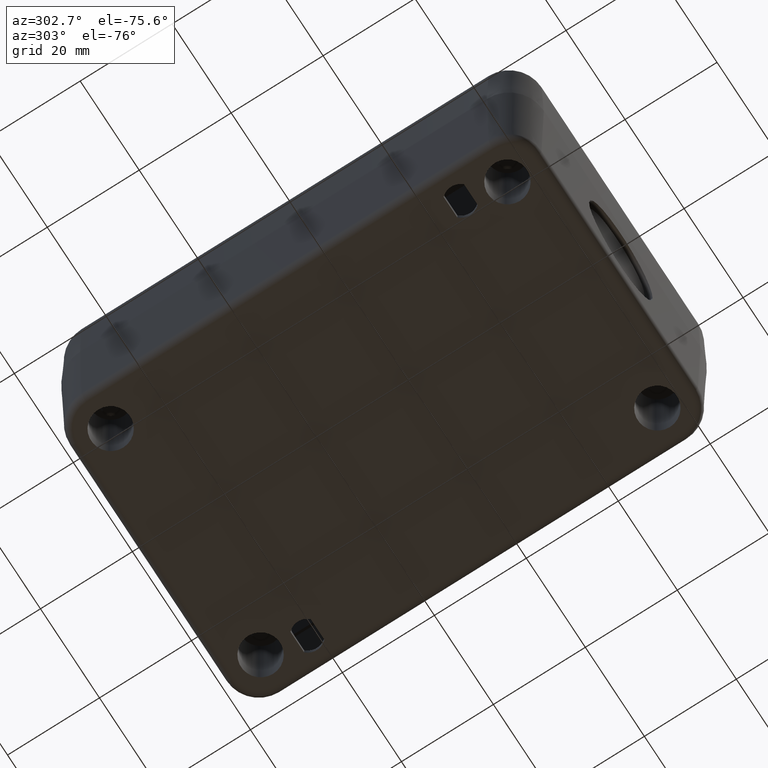
[diagram: clean part render]
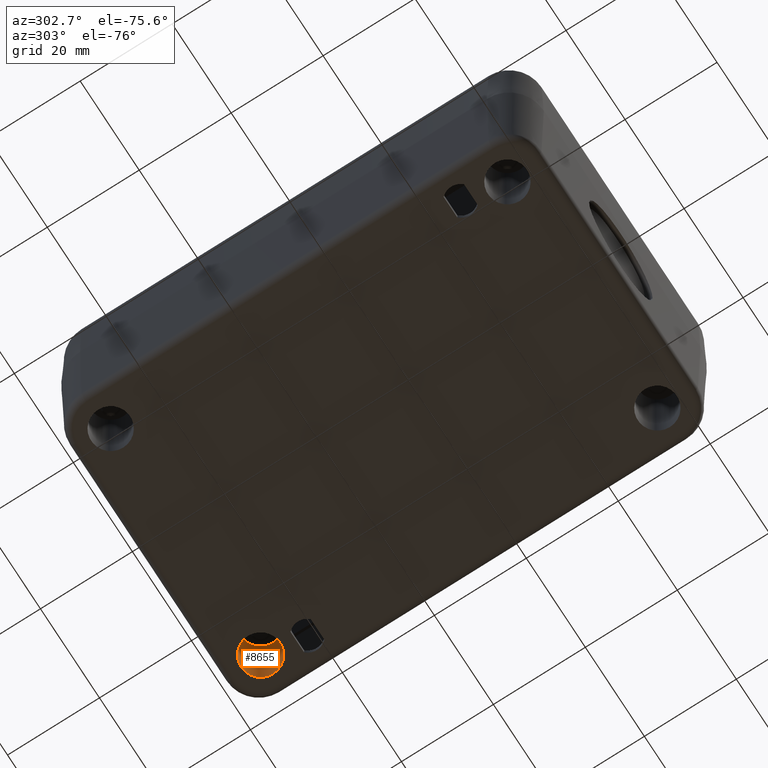
[diagram: same view with one face highlighted and labeled with its STEP entity id]
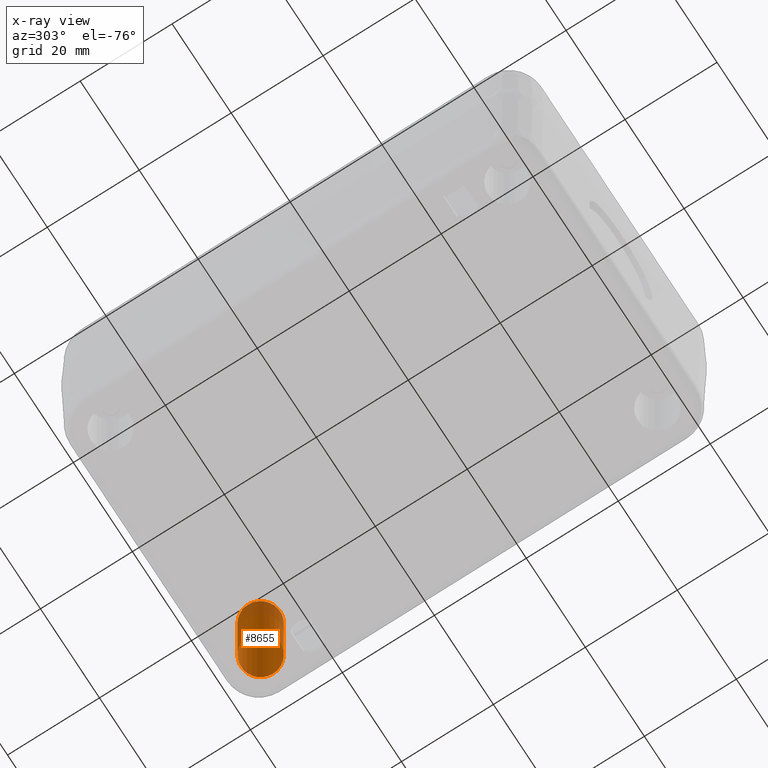
[diagram: x-ray of the same camera — body ghosted, the highlighted face saturated]
A machine part, auxiliary view. The second image highlights one B-rep face of the part: STEP entity #8655.
The next image is the same camera in x-ray: the body ghosted, the highlighted face saturated — about 21% of this face is hidden behind the body in this view.
In plain terms, the highlighted face is a freeform B-spline surface patch.
Its self-contained STEP definition (entity closure, byte-faithful):
#3410=CARTESIAN_POINT('',(5.277450702821492,71.072435103463590,0.0));
#3411=VERTEX_POINT('',#3410);
#3412=CARTESIAN_POINT('',(9.527450702821492,71.072435103463590,0.0));
#3413=DIRECTION('',(0.0,0.0,1.0));
#3414=DIRECTION('',(-1.0,0.0,0.0));
#3415=AXIS2_PLACEMENT_3D('',#3412,#3413,#3414);
#3416=CIRCLE('',#3415,4.250000000000000);
#3417=EDGE_CURVE('',#3411,#3411,#3416,.T.);
#8600=CARTESIAN_POINT('',(5.277450702821492,71.072435103463590,23.000000000000004));
#8601=VERTEX_POINT('',#8600);
#8602=CARTESIAN_POINT('',(9.527450702821492,71.072435103463590,23.000000000000004));
#8603=DIRECTION('',(0.0,0.0,-1.0));
#8604=DIRECTION('',(-1.0,0.0,0.0));
#8605=AXIS2_PLACEMENT_3D('',#8602,#8603,#8604);
#8606=CIRCLE('',#8605,4.250000000000000);
#8607=EDGE_CURVE('',#8601,#8601,#8606,.T.);
#8623=CARTESIAN_POINT('',(13.777450702821492,71.072435103463590,0.0));
#8624=CARTESIAN_POINT('',(13.777450702821492,71.072435103463590,23.000000000000004));
#8625=CARTESIAN_POINT('',(13.777450702821490,66.822435103463590,0.0));
#8626=CARTESIAN_POINT('',(13.777450702821490,66.822435103463590,23.000000000000004));
#8627=CARTESIAN_POINT('',(9.527450702821492,66.822435103463590,0.0));
#8628=CARTESIAN_POINT('',(9.527450702821492,66.822435103463590,23.000000000000004));
#8629=CARTESIAN_POINT('',(5.277450702821493,66.822435103463590,0.0));
#8630=CARTESIAN_POINT('',(5.277450702821493,66.822435103463590,23.000000000000004));
#8631=CARTESIAN_POINT('',(5.277450702821492,71.072435103463590,0.0));
#8632=CARTESIAN_POINT('',(5.277450702821492,71.072435103463590,23.000000000000004));
#8633=CARTESIAN_POINT('',(5.277450702821493,75.322435103463590,0.0));
#8634=CARTESIAN_POINT('',(5.277450702821493,75.322435103463590,23.000000000000004));
#8635=CARTESIAN_POINT('',(9.527450702821492,75.322435103463590,0.0));
#8636=CARTESIAN_POINT('',(9.527450702821492,75.322435103463590,23.000000000000004));
#8637=CARTESIAN_POINT('',(13.777450702821490,75.322435103463590,0.0));
#8638=CARTESIAN_POINT('',(13.777450702821490,75.322435103463590,23.000000000000004));
#8639=CARTESIAN_POINT('',(13.777450702821492,71.072435103463590,0.0));
#8640=CARTESIAN_POINT('',(13.777450702821492,71.072435103463590,23.000000000000004));
#8648=(BOUNDED_SURFACE()B_SPLINE_SURFACE(1,2,((#8623,#8625,#8627,#8629,#8631,#8633,#8635,#8637,#8639),(#8624,#8626,#8628,#8630,#8632,#8634,#8636,#8638,#8640)),.UNSPECIFIED.,.F.,.T.,.U.)B_SPLINE_SURFACE_WITH_KNOTS((2,2),(3,2,2,2,3),(-2.705882352941177,2.705882352941177),(0.0,6.675884388878311,13.351768777756622,20.027653166634931,26.703537555513243),.UNSPECIFIED.)GEOMETRIC_REPRESENTATION_ITEM()RATIONAL_B_SPLINE_SURFACE(((1.0,0.707106781186548,1.0,0.707106781186548,1.0,0.707106781186548,1.0,0.707106781186548,1.0),(1.0,0.707106781186548,1.0,0.707106781186548,1.0,0.707106781186548,1.0,0.707106781186548,1.0)))REPRESENTATION_ITEM('')SURFACE());
#8649=ORIENTED_EDGE('',*,*,#3417,.F.);
#8650=EDGE_LOOP('',(#8649));
#8651=FACE_OUTER_BOUND('',#8650,.T.);
#8652=ORIENTED_EDGE('',*,*,#8607,.F.);
#8653=EDGE_LOOP('',(#8652));
#8654=FACE_BOUND('',#8653,.T.);
#8655=ADVANCED_FACE('',(#8651,#8654),#8648,.F.);